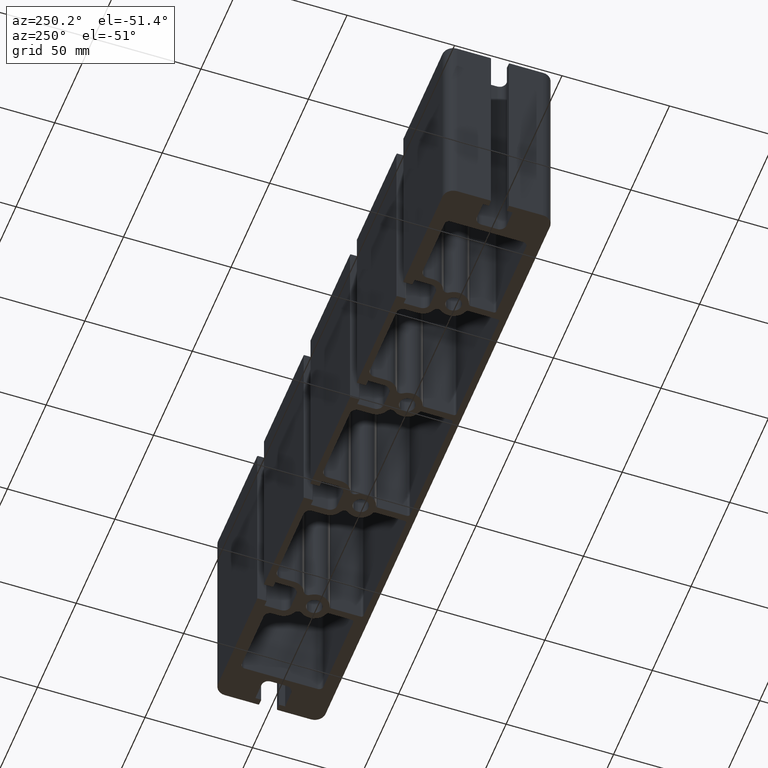
[diagram: clean part render]
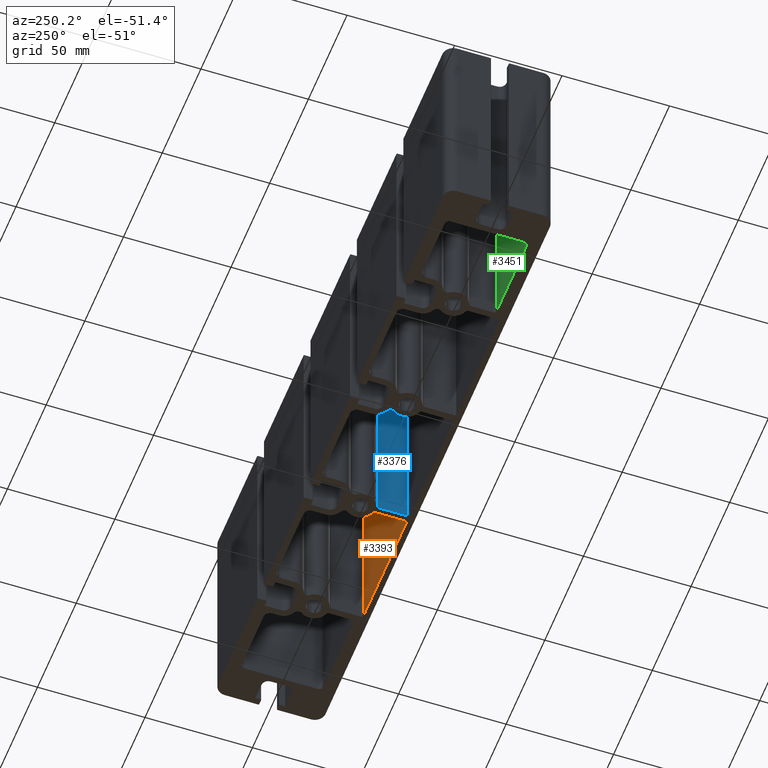
[diagram: same view with three faces highlighted in distinct colors, each labeled with its STEP entity id]
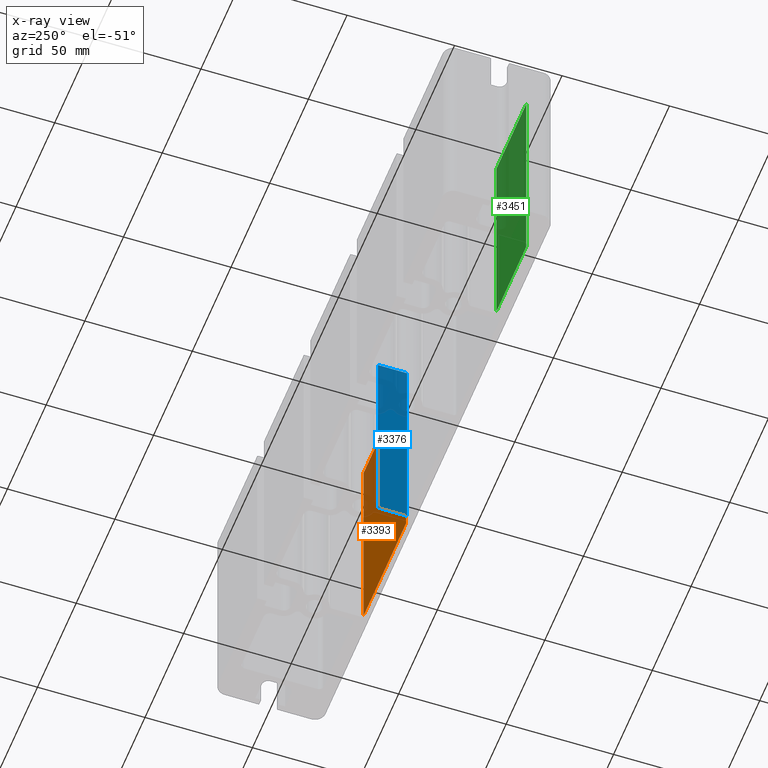
[diagram: x-ray of the same camera — body ghosted, the three highlighted faces saturated]
A machine part, auxiliary view with three faces highlighted in distinct colors.
The next image is the same camera in x-ray (body ghosted, the three faces saturated) — at least one of them is partly hidden behind the body in this view.
Their STEP definitions:

[orange] entity #3393 — the highlighted planar face has unit normal (0, -1, 0).
#44=PLANE('',#3599);
#139=FACE_OUTER_BOUND('',#317,.T.);
#317=EDGE_LOOP('',(#2309,#2310,#2311,#2312));
#531=LINE('',#5119,#863);
#532=LINE('',#5123,#864);
#533=LINE('',#5125,#865);
#534=LINE('',#5126,#866);
#863=VECTOR('',#4049,100.);
#864=VECTOR('',#4054,54.9999999999999);
#865=VECTOR('',#4055,100.);
#866=VECTOR('',#4056,54.9999999999999);
#1393=VERTEX_POINT('',#5116);
#1394=VERTEX_POINT('',#5118);
#1395=VERTEX_POINT('',#5122);
#1396=VERTEX_POINT('',#5124);
#1764=EDGE_CURVE('',#1393,#1394,#531,.T.);
#1766=EDGE_CURVE('',#1395,#1393,#532,.T.);
#1767=EDGE_CURVE('',#1395,#1396,#533,.T.);
#1768=EDGE_CURVE('',#1394,#1396,#534,.T.);
#2309=ORIENTED_EDGE('',*,*,#1766,.F.);
#2310=ORIENTED_EDGE('',*,*,#1767,.T.);
#2311=ORIENTED_EDGE('',*,*,#1768,.F.);
#2312=ORIENTED_EDGE('',*,*,#1764,.F.);
#3393=ADVANCED_FACE('',(#139),#44,.F.);
#3599=AXIS2_PLACEMENT_3D('',#5121,#4052,#4053);
#4049=DIRECTION('',(0.,0.,1.));
#4052=DIRECTION('center_axis',(2.26081779560032E-15,-1.,0.));
#4053=DIRECTION('ref_axis',(1.,2.1316282072803E-15,0.));
#4054=DIRECTION('',(1.,2.26081779560032E-15,0.));
#4055=DIRECTION('',(0.,0.,1.));
#4056=DIRECTION('',(-1.,-2.26081779560032E-15,0.));
#5116=CARTESIAN_POINT('',(117.5,-21.9999999999999,0.));
#5118=CARTESIAN_POINT('',(117.5,-21.9999999999999,100.));
#5119=CARTESIAN_POINT('',(117.5,-21.9999999999999,0.));
#5121=CARTESIAN_POINT('Origin',(62.4999999999999,-22.0000000000001,0.));
#5122=CARTESIAN_POINT('',(62.4999999999999,-22.0000000000001,0.));
#5123=CARTESIAN_POINT('',(46.2499999999995,-22.0000000000001,0.));
#5124=CARTESIAN_POINT('',(62.4999999999999,-22.0000000000001,100.));
#5125=CARTESIAN_POINT('',(62.4999999999999,-22.0000000000001,0.));
#5126=CARTESIAN_POINT('',(46.2499999999995,-22.0000000000001,100.));

[blue] entity #3376 — the highlighted planar face has unit normal (1, 0, 0).
#37=PLANE('',#3562);
#122=FACE_OUTER_BOUND('',#300,.T.);
#300=EDGE_LOOP('',(#2241,#2242,#2243,#2244));
#500=LINE('',#5017,#832);
#501=LINE('',#5021,#833);
#502=LINE('',#5023,#834);
#503=LINE('',#5024,#835);
#832=VECTOR('',#3944,100.);
#833=VECTOR('',#3949,13.6642996244392);
#834=VECTOR('',#3950,100.);
#835=VECTOR('',#3951,13.6642996244392);
#1359=VERTEX_POINT('',#5014);
#1360=VERTEX_POINT('',#5016);
#1361=VERTEX_POINT('',#5020);
#1362=VERTEX_POINT('',#5022);
#1713=EDGE_CURVE('',#1359,#1360,#500,.T.);
#1715=EDGE_CURVE('',#1361,#1359,#501,.T.);
#1716=EDGE_CURVE('',#1361,#1362,#502,.T.);
#1717=EDGE_CURVE('',#1360,#1362,#503,.T.);
#2241=ORIENTED_EDGE('',*,*,#1715,.F.);
#2242=ORIENTED_EDGE('',*,*,#1716,.T.);
#2243=ORIENTED_EDGE('',*,*,#1717,.F.);
#2244=ORIENTED_EDGE('',*,*,#1713,.F.);
#3376=ADVANCED_FACE('',(#122),#37,.F.);
#3562=AXIS2_PLACEMENT_3D('',#5019,#3947,#3948);
#3944=DIRECTION('',(0.,0.,1.));
#3947=DIRECTION('center_axis',(1.,1.26099850089386E-13,0.));
#3948=DIRECTION('ref_axis',(-1.25766064229538E-13,1.,0.));
#3949=DIRECTION('',(-1.26099850089386E-13,1.,0.));
#3950=DIRECTION('',(0.,0.,1.));
#3951=DIRECTION('',(1.26099850089386E-13,-1.,0.));
#5014=CARTESIAN_POINT('',(58.499999999998,-7.3357003755609,0.));
#5016=CARTESIAN_POINT('',(58.499999999998,-7.3357003755609,100.));
#5017=CARTESIAN_POINT('',(58.499999999998,-7.3357003755609,0.));
#5019=CARTESIAN_POINT('Origin',(58.4999999999998,-21.0000000000001,0.));
#5020=CARTESIAN_POINT('',(58.4999999999998,-21.0000000000001,0.));
#5021=CARTESIAN_POINT('',(58.4999999999983,-9.38580285546052,0.));
#5022=CARTESIAN_POINT('',(58.4999999999998,-21.0000000000001,100.));
#5023=CARTESIAN_POINT('',(58.4999999999998,-21.0000000000001,0.));
#5024=CARTESIAN_POINT('',(58.4999999999983,-9.38580285546052,100.));

[green] entity #3451 — the highlighted planar face has unit normal (0, -1, 0).
#64=PLANE('',#3733);
#197=FACE_OUTER_BOUND('',#375,.T.);
#375=EDGE_LOOP('',(#2541,#2542,#2543,#2544));
#629=LINE('',#5467,#961);
#630=LINE('',#5471,#962);
#631=LINE('',#5473,#963);
#632=LINE('',#5474,#964);
#961=VECTOR('',#4415,100.);
#962=VECTOR('',#4420,38.5000000000001);
#963=VECTOR('',#4421,100.);
#964=VECTOR('',#4422,38.5000000000001);
#1509=VERTEX_POINT('',#5464);
#1510=VERTEX_POINT('',#5466);
#1511=VERTEX_POINT('',#5470);
#1512=VERTEX_POINT('',#5472);
#1938=EDGE_CURVE('',#1509,#1510,#629,.T.);
#1940=EDGE_CURVE('',#1511,#1509,#630,.T.);
#1941=EDGE_CURVE('',#1511,#1512,#631,.T.);
#1942=EDGE_CURVE('',#1510,#1512,#632,.T.);
#2541=ORIENTED_EDGE('',*,*,#1940,.F.);
#2542=ORIENTED_EDGE('',*,*,#1941,.T.);
#2543=ORIENTED_EDGE('',*,*,#1942,.F.);
#2544=ORIENTED_EDGE('',*,*,#1938,.F.);
#3451=ADVANCED_FACE('',(#197),#64,.F.);
#3733=AXIS2_PLACEMENT_3D('',#5469,#4418,#4419);
#4415=DIRECTION('',(0.,0.,1.));
#4418=DIRECTION('center_axis',(9.22782773714414E-16,-1.,0.));
#4419=DIRECTION('ref_axis',(1.,1.06581410364015E-15,0.));
#4420=DIRECTION('',(1.,9.22782773714414E-16,0.));
#4421=DIRECTION('',(0.,0.,1.));
#4422=DIRECTION('',(-1.,-9.22782773714414E-16,0.));
#5464=CARTESIAN_POINT('',(-62.5000000000019,-19.,0.));
#5466=CARTESIAN_POINT('',(-62.5000000000019,-19.,100.));
#5467=CARTESIAN_POINT('',(-62.5000000000019,-19.,0.));
#5469=CARTESIAN_POINT('Origin',(-101.000000000002,-19.,0.));
#5470=CARTESIAN_POINT('',(-101.000000000002,-19.,0.));
#5471=CARTESIAN_POINT('',(-35.5000000000015,-18.9999999999999,0.));
#5472=CARTESIAN_POINT('',(-101.000000000002,-19.,100.));
#5473=CARTESIAN_POINT('',(-101.000000000002,-19.,0.));
#5474=CARTESIAN_POINT('',(-35.5000000000015,-18.9999999999999,100.));